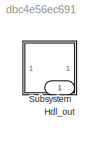
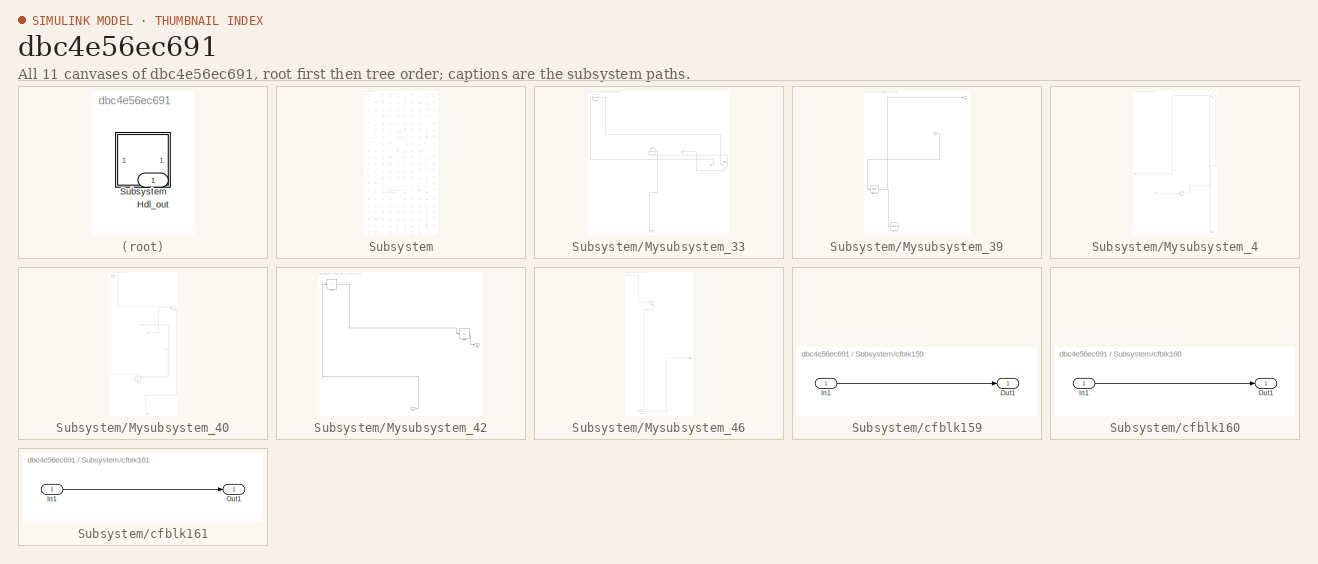
[diagram: thumbnail index - all 11 canvases of the model, root first then tree order]
MODEL slx_dbc4e56ec691
KIND model
CONFIG AbsTol = auto
CONFIG EnableMultiTasking = off
CONFIG FixedStep = auto
CONFIG MaxStep = auto
CONFIG MinStep = auto
CONFIG RelTol = 1e-3
CONFIG SampleTimeConstraint = Unconstrained
CONFIG SolverName = VariableStepAuto
CONFIG StartTime = 0.0
CONFIG StopTime = 10.0
BLOCK [Outport] Hdl_out
  OutDataTypeStr = uint8
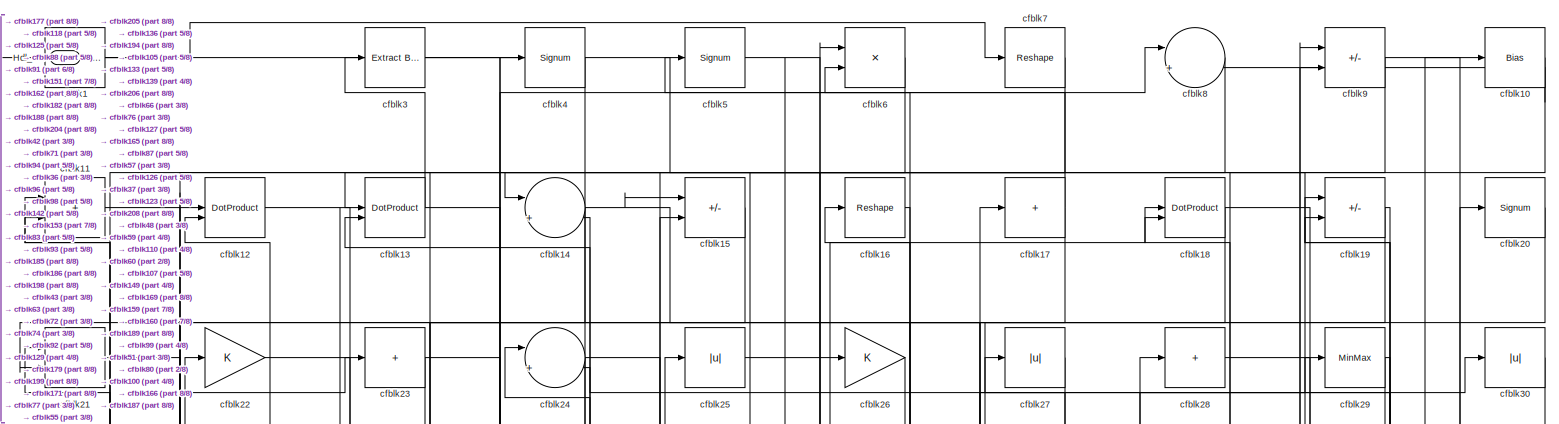
[diagram: Subsystem - part 1/8, full width, top band]
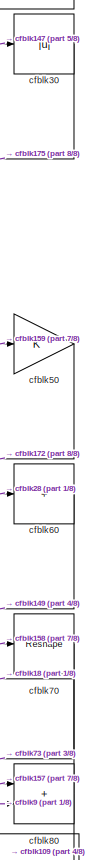
[diagram: Subsystem - part 2/8, top right region]
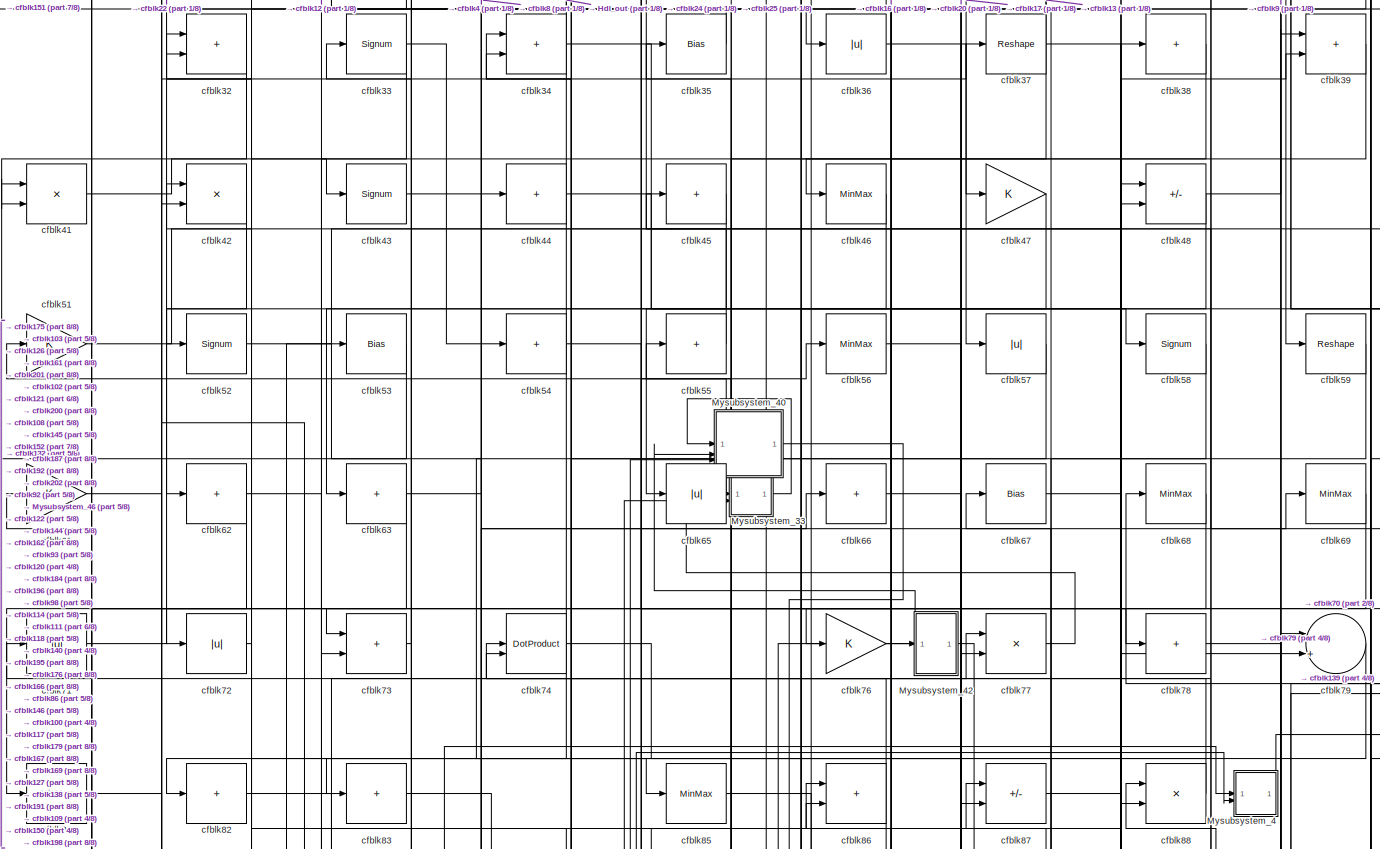
[diagram: Subsystem - part 3/8, full width, top band]
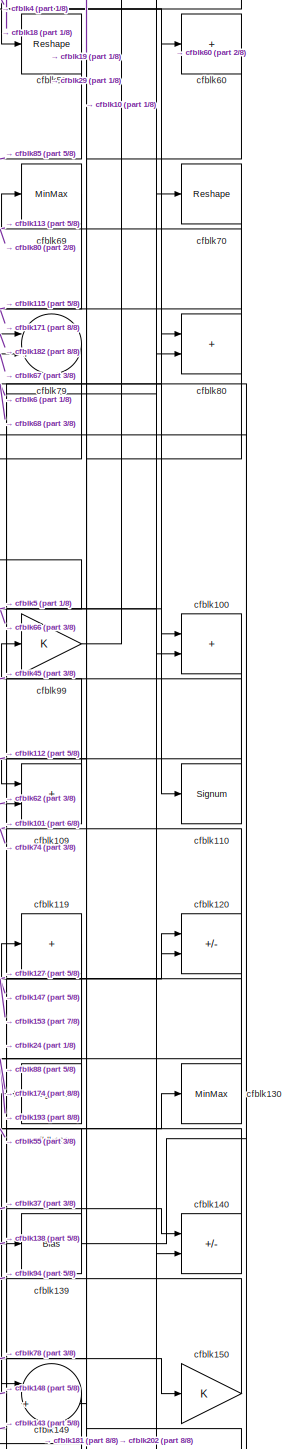
[diagram: Subsystem - part 4/8, middle right region]
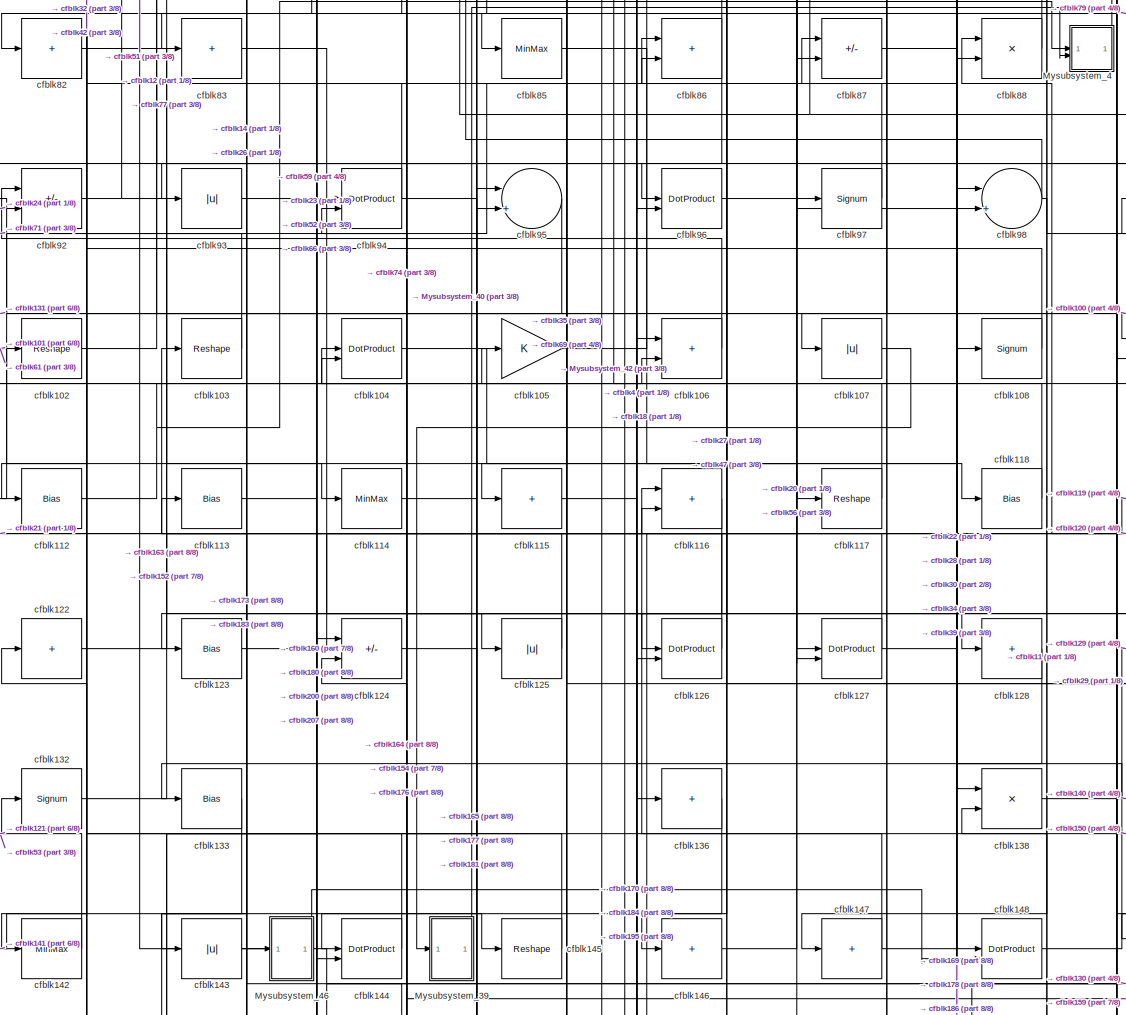
[diagram: Subsystem - part 5/8, central region]
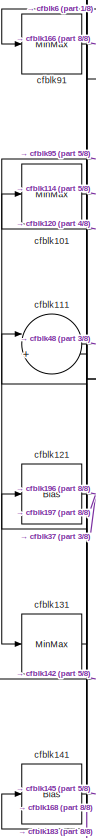
[diagram: Subsystem - part 6/8, middle left region]
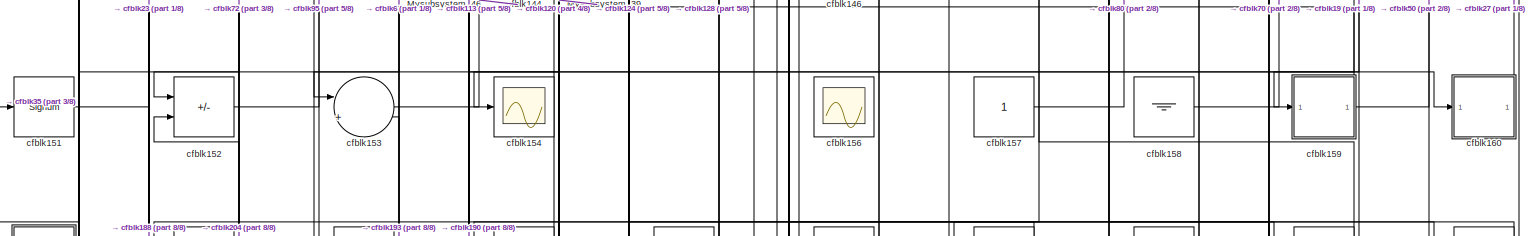
[diagram: Subsystem - part 7/8, full width, bottom band]
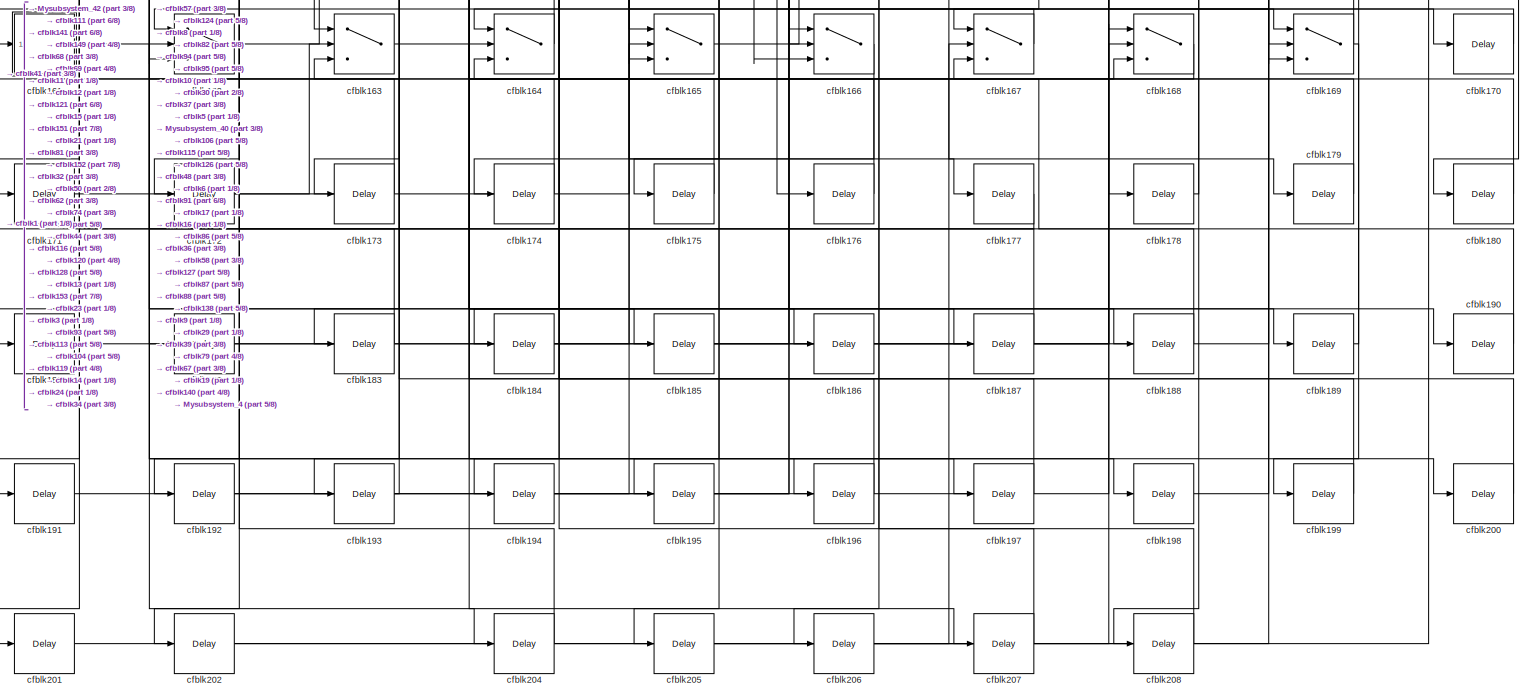
[diagram: Subsystem - part 8/8, full width, bottom band]
BLOCK [SubSystem] Subsystem
BLOCK [Outport] Subsystem/Hdl_out
  OutDataTypeStr = uint8
BLOCK [SubSystem] Subsystem/Mysubsystem_33
  RTWFcnName = Mysubsystem_33
  RTWFcnNameOpts = User specified
  RTWFileNameOpts = Use function name
  RTWSystemCode = Reusable function
  TreatAsAtomicUnit = on
BLOCK [Inport] Subsystem/Mysubsystem_33/In1
BLOCK [Inport] Subsystem/Mysubsystem_33/In2
  Port = 2
BLOCK [Outport] Subsystem/Mysubsystem_33/Out1
BLOCK [Reshape] Subsystem/Mysubsystem_33/cfblk31
BLOCK [Signum] Subsystem/Mysubsystem_33/cfblk75
BLOCK [Sum] Subsystem/Mysubsystem_33/cfblk90
  Inputs = |++
BLOCK [SubSystem] Subsystem/Mysubsystem_39
  RTWFcnName = Mysubsystem_39
  RTWFcnNameOpts = User specified
  RTWFileNameOpts = Use function name
  RTWSystemCode = Reusable function
  TreatAsAtomicUnit = on
BLOCK [Inport] Subsystem/Mysubsystem_39/In1
BLOCK [Outport] Subsystem/Mysubsystem_39/Out1
BLOCK [MinMax] Subsystem/Mysubsystem_39/cfblk134
BLOCK [ToWorkspace] Subsystem/Mysubsystem_39/cfblk155
  MaxDataPoints = inf
  SampleTime = -1
  SaveFormat = Timeseries
  VariableName = simout
BLOCK [SubSystem] Subsystem/Mysubsystem_4
  RTWFcnName = Mysubsystem_4
  RTWFcnNameOpts = User specified
  RTWFileNameOpts = Use function name
  RTWSystemCode = Reusable function
  TreatAsAtomicUnit = on
BLOCK [Inport] Subsystem/Mysubsystem_4/In1
BLOCK [Inport] Subsystem/Mysubsystem_4/In2
  Port = 2
BLOCK [Outport] Subsystem/Mysubsystem_4/Out1
BLOCK [Reshape] Subsystem/Mysubsystem_4/cfblk137
BLOCK [Sum] Subsystem/Mysubsystem_4/cfblk40
  Inputs = |++
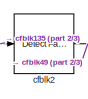
[diagram: Subsystem/Mysubsystem_40 - part 1/3, top left region]
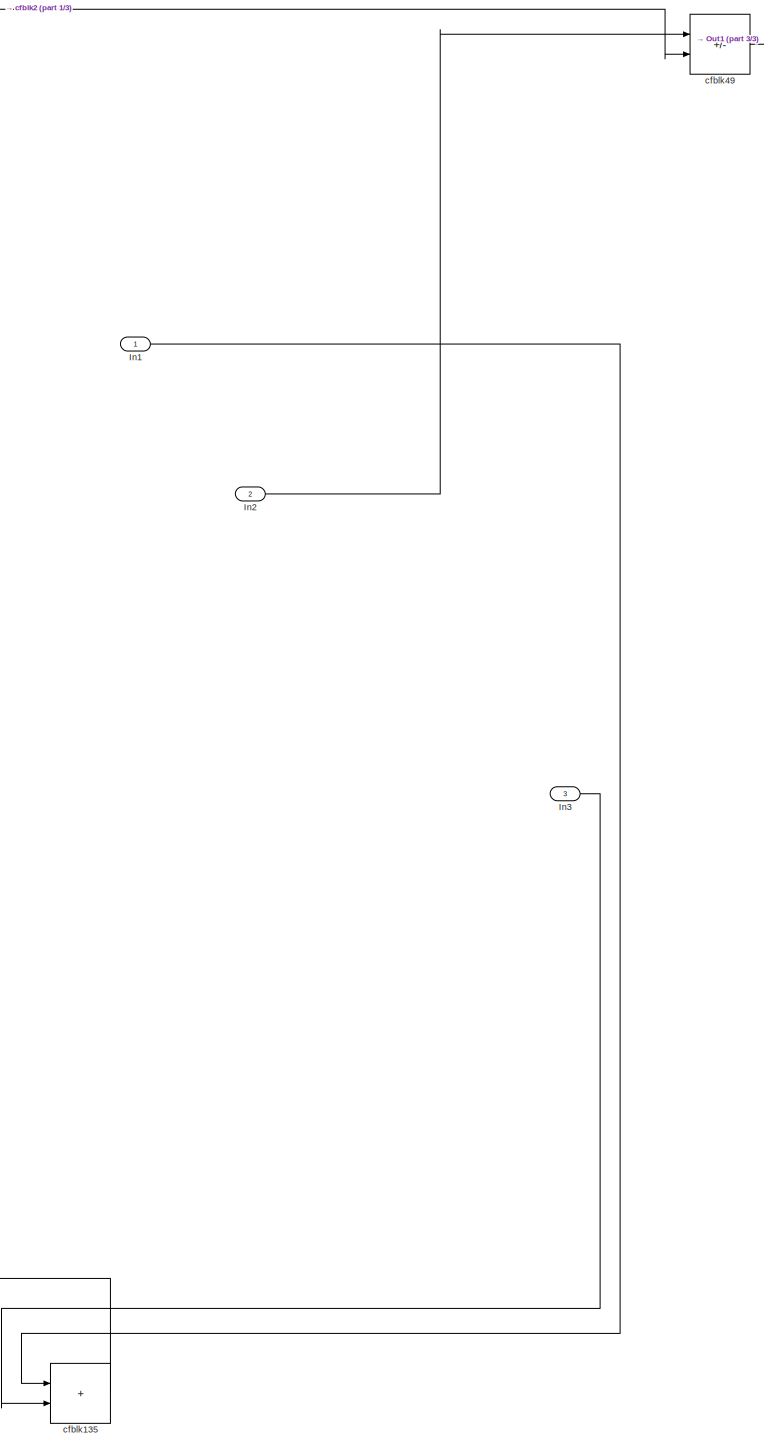
[diagram: Subsystem/Mysubsystem_40 - part 2/3, middle right region]
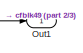
[diagram: Subsystem/Mysubsystem_40 - part 3/3, bottom center region]
BLOCK [SubSystem] Subsystem/Mysubsystem_40
  RTWFcnName = Mysubsystem_40
  RTWFcnNameOpts = User specified
  RTWFileNameOpts = Use function name
  RTWSystemCode = Reusable function
  TreatAsAtomicUnit = on
BLOCK [Inport] Subsystem/Mysubsystem_40/In1
BLOCK [Inport] Subsystem/Mysubsystem_40/In2
  Port = 2
BLOCK [Inport] Subsystem/Mysubsystem_40/In3
  Port = 3
BLOCK [Outport] Subsystem/Mysubsystem_40/Out1
BLOCK [Sum] Subsystem/Mysubsystem_40/cfblk135
  IconShape = rectangular
BLOCK [Reference] Subsystem/Mysubsystem_40/cfblk2  REF=hdlsllib/Logic and Bit
Operations/Detect Fall
Negative
  SourceBlock = hdlsllib/Logic and Bit\nOperations/Detect Fall\nNegative
  SourceType = Detect Fall Negative
BLOCK [Sum] Subsystem/Mysubsystem_40/cfblk49
  IconShape = rectangular
  Inputs = +-
BLOCK [SubSystem] Subsystem/Mysubsystem_42
  RTWFcnName = Mysubsystem_42
  RTWFcnNameOpts = User specified
  RTWFileNameOpts = Use function name
  RTWSystemCode = Reusable function
  TreatAsAtomicUnit = on
BLOCK [Inport] Subsystem/Mysubsystem_42/In1
BLOCK [Outport] Subsystem/Mysubsystem_42/Out1
BLOCK [Sum] Subsystem/Mysubsystem_42/cfblk64
  IconShape = rectangular
  Inputs = +
BLOCK [Abs] Subsystem/Mysubsystem_42/cfblk89
  SaturateOnIntegerOverflow = off
BLOCK [SubSystem] Subsystem/Mysubsystem_46
  RTWFcnName = Mysubsystem_46
  RTWFcnNameOpts = User specified
  RTWFileNameOpts = Use function name
  RTWSystemCode = Reusable function
  TreatAsAtomicUnit = on
BLOCK [Inport] Subsystem/Mysubsystem_46/In1
BLOCK [Outport] Subsystem/Mysubsystem_46/Out1
BLOCK [Delay] Subsystem/Mysubsystem_46/cfblk203
  InputPortMap = u0
  SampleTime = 1
BLOCK [MinMax] Subsystem/Mysubsystem_46/cfblk84
BLOCK [Reference] Subsystem/cfblk1  REF=hdlsllib/Logic and Bit
Operations/Detect Fall
Negative
  SourceBlock = hdlsllib/Logic and Bit\nOperations/Detect Fall\nNegative
  SourceType = Detect Fall Negative
BLOCK [Bias] Subsystem/cfblk10
  Bias = 0.0
  SaturateOnIntegerOverflow = off
BLOCK [Sum] Subsystem/cfblk100
  IconShape = rectangular
  OutDataTypeStr = uint8
BLOCK [MinMax] Subsystem/cfblk101
  OutDataTypeStr = uint8
BLOCK [Reshape] Subsystem/cfblk102
BLOCK [Reshape] Subsystem/cfblk103
BLOCK [DotProduct] Subsystem/cfblk104
  OutDataTypeStr = uint8
BLOCK [Gain] Subsystem/cfblk105
  OutDataTypeStr = uint8
BLOCK [Sum] Subsystem/cfblk106
  IconShape = rectangular
  OutDataTypeStr = uint8
BLOCK [Abs] Subsystem/cfblk107
  OutDataTypeStr = uint8
  SaturateOnIntegerOverflow = off
BLOCK [Signum] Subsystem/cfblk108
BLOCK [Sum] Subsystem/cfblk109
  IconShape = rectangular
  OutDataTypeStr = uint8
BLOCK [Sum] Subsystem/cfblk11
  IconShape = rectangular
  OutDataTypeStr = uint8
BLOCK [Signum] Subsystem/cfblk110
BLOCK [Sum] Subsystem/cfblk111
  Inputs = |++
  OutDataTypeStr = uint8
BLOCK [Bias] Subsystem/cfblk112
  Bias = 0.0
  SaturateOnIntegerOverflow = off
BLOCK [Bias] Subsystem/cfblk113
  Bias = 0.0
  SaturateOnIntegerOverflow = off
BLOCK [MinMax] Subsystem/cfblk114
  OutDataTypeStr = uint8
BLOCK [Sum] Subsystem/cfblk115
  IconShape = rectangular
  Inputs = +
  OutDataTypeStr = uint8
BLOCK [Sum] Subsystem/cfblk116
  IconShape = rectangular
  OutDataTypeStr = uint8
BLOCK [Reshape] Subsystem/cfblk117
BLOCK [Bias] Subsystem/cfblk118
  Bias = 0.0
  SaturateOnIntegerOverflow = off
BLOCK [Sum] Subsystem/cfblk119
  IconShape = rectangular
  Inputs = +
  OutDataTypeStr = uint8
BLOCK [DotProduct] Subsystem/cfblk12
  OutDataTypeStr = uint8
BLOCK [Sum] Subsystem/cfblk120
  IconShape = rectangular
  Inputs = +-
  OutDataTypeStr = uint8
BLOCK [Bias] Subsystem/cfblk121
  Bias = 0.0
  SaturateOnIntegerOverflow = off
BLOCK [Sum] Subsystem/cfblk122
  IconShape = rectangular
  Inputs = +
  OutDataTypeStr = uint8
BLOCK [Bias] Subsystem/cfblk123
  Bias = 0.0
  SaturateOnIntegerOverflow = off
BLOCK [Sum] Subsystem/cfblk124
  IconShape = rectangular
  Inputs = +-
  OutDataTypeStr = uint8
BLOCK [Abs] Subsystem/cfblk125
  OutDataTypeStr = uint8
  SaturateOnIntegerOverflow = off
BLOCK [DotProduct] Subsystem/cfblk126
  OutDataTypeStr = uint8
BLOCK [DotProduct] Subsystem/cfblk127
  OutDataTypeStr = uint8
BLOCK [Sum] Subsystem/cfblk128
  IconShape = rectangular
  Inputs = +
  OutDataTypeStr = uint8
BLOCK [Signum] Subsystem/cfblk129
BLOCK [DotProduct] Subsystem/cfblk13
  OutDataTypeStr = uint8
BLOCK [MinMax] Subsystem/cfblk130
  OutDataTypeStr = uint8
BLOCK [MinMax] Subsystem/cfblk131
  OutDataTypeStr = uint8
BLOCK [Signum] Subsystem/cfblk132
BLOCK [Bias] Subsystem/cfblk133
  Bias = 0.0
  SaturateOnIntegerOverflow = off
BLOCK [Sum] Subsystem/cfblk136
  IconShape = rectangular
  Inputs = +
  OutDataTypeStr = uint8
BLOCK [Product] Subsystem/cfblk138
  Inputs = */
  OutDataTypeStr = uint8
  RndMeth = Zero
  SaturateOnIntegerOverflow = on
BLOCK [Bias] Subsystem/cfblk139
  Bias = 0.0
  SaturateOnIntegerOverflow = off
BLOCK [Sum] Subsystem/cfblk14
  Inputs = |++
  OutDataTypeStr = uint8
BLOCK [Sum] Subsystem/cfblk140
  IconShape = rectangular
  Inputs = +-
  OutDataTypeStr = uint8
BLOCK [Bias] Subsystem/cfblk141
  Bias = 0.0
  SaturateOnIntegerOverflow = off
BLOCK [MinMax] Subsystem/cfblk142
  OutDataTypeStr = uint8
BLOCK [Abs] Subsystem/cfblk143
  OutDataTypeStr = uint8
  SaturateOnIntegerOverflow = off
BLOCK [DotProduct] Subsystem/cfblk144
  OutDataTypeStr = uint8
BLOCK [Reshape] Subsystem/cfblk145
BLOCK [Sum] Subsystem/cfblk146
  IconShape = rectangular
  Inputs = +
  OutDataTypeStr = uint8
BLOCK [Sum] Subsystem/cfblk147
  IconShape = rectangular
  Inputs = +
  OutDataTypeStr = uint8
BLOCK [DotProduct] Subsystem/cfblk148
  OutDataTypeStr = uint8
BLOCK [Sum] Subsystem/cfblk149
  Inputs = |++
  OutDataTypeStr = uint8
BLOCK [Sum] Subsystem/cfblk15
  IconShape = rectangular
  Inputs = +-
  OutDataTypeStr = uint8
BLOCK [Gain] Subsystem/cfblk150
  OutDataTypeStr = uint8
BLOCK [Signum] Subsystem/cfblk151
BLOCK [Sum] Subsystem/cfblk152
  IconShape = rectangular
  Inputs = +-
  OutDataTypeStr = uint8
BLOCK [Sum] Subsystem/cfblk153
  Inputs = |++
  OutDataTypeStr = uint8
BLOCK [Scope] Subsystem/cfblk154
  Floating = off
  NumInputPorts = 1
  ScopeSpecificationString = Simulink.scopes.TimeScopeBlockCfg('CurrentConfiguration', extmgr.ConfigurationSet(extmgr.Configuration('Core','General UI',true),extmgr.Configuration('Core','Source UI',true),extmgr.Configuration('Sources','WiredSimulink',true,'DataLoggingVariableName','ScopeData1','DataLoggingSaveFormat','Array','DataLoggingLimitDataPoints',true,'DataLoggingDecimation','1'),extmgr.Configuration('Visuals','Time Do...<+868ch>
BLOCK [Scope] Subsystem/cfblk156
  Floating = on
  NumInputPorts = 1
  ScopeSpecificationString = Simulink.scopes.TimeScopeBlockCfg('CurrentConfiguration', extmgr.ConfigurationSet(extmgr.Configuration('Core','General UI',true,'FigureColor',[0.156862745098039 0.156862745098039 0.156862745098039]),extmgr.Configuration('Core','Source UI',true),extmgr.Configuration('Sources','WiredSimulink',true,'DataLoggingSaveFormat','StructureWithTime','DataLoggingLimitDataPoints',true,'DataLoggingDecimation','...<+2674ch>
BLOCK [Constant] Subsystem/cfblk157
  OutDataTypeStr = uint8
  SampleTime = -1
BLOCK [Ground] Subsystem/cfblk158
BLOCK [SubSystem] Subsystem/cfblk159
  LibrarySourceBlock = hdlsllib/Ports &\nSubsystems/Subsystem
BLOCK [Inport] Subsystem/cfblk159/In1
BLOCK [Outport] Subsystem/cfblk159/Out1
BLOCK [Reshape] Subsystem/cfblk16
BLOCK [SubSystem] Subsystem/cfblk160
  LibrarySourceBlock = hdlsllib/Ports &\nSubsystems/Subsystem
BLOCK [Inport] Subsystem/cfblk160/In1
BLOCK [Outport] Subsystem/cfblk160/Out1
BLOCK [SubSystem] Subsystem/cfblk161
  LibrarySourceBlock = hdlsllib/Ports &\nSubsystems/Subsystem
BLOCK [Inport] Subsystem/cfblk161/In1
BLOCK [Outport] Subsystem/cfblk161/Out1
BLOCK [Switch] Subsystem/cfblk162
  InputSameDT = off
  OutDataTypeStr = uint8
  SaturateOnIntegerOverflow = off
BLOCK [Switch] Subsystem/cfblk163
  InputSameDT = off
  OutDataTypeStr = uint8
  SaturateOnIntegerOverflow = off
BLOCK [Switch] Subsystem/cfblk164
  InputSameDT = off
  OutDataTypeStr = uint8
  SaturateOnIntegerOverflow = off
BLOCK [Switch] Subsystem/cfblk165
  InputSameDT = off
  OutDataTypeStr = uint8
  SaturateOnIntegerOverflow = off
BLOCK [Switch] Subsystem/cfblk166
  InputSameDT = off
  OutDataTypeStr = uint8
  SaturateOnIntegerOverflow = off
BLOCK [Switch] Subsystem/cfblk167
  InputSameDT = off
  OutDataTypeStr = uint8
  SaturateOnIntegerOverflow = off
BLOCK [Switch] Subsystem/cfblk168
  InputSameDT = off
  OutDataTypeStr = uint8
  SaturateOnIntegerOverflow = off
BLOCK [Switch] Subsystem/cfblk169
  InputSameDT = off
  OutDataTypeStr = uint8
  SaturateOnIntegerOverflow = off
BLOCK [Sum] Subsystem/cfblk17
  IconShape = rectangular
  Inputs = +
  OutDataTypeStr = uint8
BLOCK [Delay] Subsystem/cfblk170
  InputPortMap = u0
  SampleTime = 1
BLOCK [Delay] Subsystem/cfblk171
  InputPortMap = u0
  SampleTime = 1
BLOCK [Delay] Subsystem/cfblk172
  InputPortMap = u0
  SampleTime = 1
BLOCK [Delay] Subsystem/cfblk173
  InputPortMap = u0
  SampleTime = 1
BLOCK [Delay] Subsystem/cfblk174
  InputPortMap = u0
  SampleTime = 1
BLOCK [Delay] Subsystem/cfblk175
  InputPortMap = u0
  SampleTime = 1
BLOCK [Delay] Subsystem/cfblk176
  InputPortMap = u0
  SampleTime = 1
BLOCK [Delay] Subsystem/cfblk177
  InputPortMap = u0
  SampleTime = 1
BLOCK [Delay] Subsystem/cfblk178
  InputPortMap = u0
  SampleTime = 1
BLOCK [Delay] Subsystem/cfblk179
  InputPortMap = u0
  SampleTime = 1
BLOCK [DotProduct] Subsystem/cfblk18
  OutDataTypeStr = uint8
BLOCK [Delay] Subsystem/cfblk180
  InputPortMap = u0
  SampleTime = 1
BLOCK [Delay] Subsystem/cfblk181
  InputPortMap = u0
  SampleTime = 1
BLOCK [Delay] Subsystem/cfblk182
  InputPortMap = u0
  SampleTime = 1
BLOCK [Delay] Subsystem/cfblk183
  InputPortMap = u0
  SampleTime = 1
BLOCK [Delay] Subsystem/cfblk184
  InputPortMap = u0
  SampleTime = 1
BLOCK [Delay] Subsystem/cfblk185
  InputPortMap = u0
  SampleTime = 1
BLOCK [Delay] Subsystem/cfblk186
  InputPortMap = u0
  SampleTime = 1
BLOCK [Delay] Subsystem/cfblk187
  InputPortMap = u0
  SampleTime = 1
BLOCK [Delay] Subsystem/cfblk188
  InputPortMap = u0
  SampleTime = 1
BLOCK [Delay] Subsystem/cfblk189
  InputPortMap = u0
  SampleTime = 1
BLOCK [Sum] Subsystem/cfblk19
  IconShape = rectangular
  Inputs = +-
  OutDataTypeStr = uint8
BLOCK [Delay] Subsystem/cfblk190
  InputPortMap = u0
  SampleTime = 1
BLOCK [Delay] Subsystem/cfblk191
  InputPortMap = u0
  SampleTime = 1
BLOCK [Delay] Subsystem/cfblk192
  InputPortMap = u0
  SampleTime = 1
BLOCK [Delay] Subsystem/cfblk193
  InputPortMap = u0
  SampleTime = 1
BLOCK [Delay] Subsystem/cfblk194
  InputPortMap = u0
  SampleTime = 1
BLOCK [Delay] Subsystem/cfblk195
  InputPortMap = u0
  SampleTime = 1
BLOCK [Delay] Subsystem/cfblk196
  InputPortMap = u0
  SampleTime = 1
BLOCK [Delay] Subsystem/cfblk197
  InputPortMap = u0
  SampleTime = 1
BLOCK [Delay] Subsystem/cfblk198
  InputPortMap = u0
  SampleTime = 1
BLOCK [Delay] Subsystem/cfblk199
  InputPortMap = u0
  SampleTime = 1
BLOCK [Signum] Subsystem/cfblk20
BLOCK [Delay] Subsystem/cfblk200
  InputPortMap = u0
  SampleTime = 1
BLOCK [Delay] Subsystem/cfblk201
  InputPortMap = u0
  SampleTime = 1
BLOCK [Delay] Subsystem/cfblk202
  InputPortMap = u0
  SampleTime = 1
BLOCK [Delay] Subsystem/cfblk204
  InputPortMap = u0
  SampleTime = 1
BLOCK [Delay] Subsystem/cfblk205
  InputPortMap = u0
  SampleTime = 1
BLOCK [Delay] Subsystem/cfblk206
  InputPortMap = u0
  SampleTime = 1
BLOCK [Delay] Subsystem/cfblk207
  InputPortMap = u0
  SampleTime = 1
BLOCK [Delay] Subsystem/cfblk208
  InputPortMap = u0
  SampleTime = 1
BLOCK [Sum] Subsystem/cfblk21
  IconShape = rectangular
  OutDataTypeStr = uint8
BLOCK [Gain] Subsystem/cfblk22
  OutDataTypeStr = uint8
BLOCK [Sum] Subsystem/cfblk23
  IconShape = rectangular
  Inputs = +
  OutDataTypeStr = uint8
BLOCK [Sum] Subsystem/cfblk24
  Inputs = |++
  OutDataTypeStr = uint8
BLOCK [Abs] Subsystem/cfblk25
  OutDataTypeStr = uint8
  SaturateOnIntegerOverflow = off
BLOCK [Gain] Subsystem/cfblk26
  OutDataTypeStr = uint8
BLOCK [Abs] Subsystem/cfblk27
  OutDataTypeStr = uint8
  SaturateOnIntegerOverflow = off
BLOCK [Sum] Subsystem/cfblk28
  IconShape = rectangular
  Inputs = +
  OutDataTypeStr = uint8
BLOCK [MinMax] Subsystem/cfblk29
  OutDataTypeStr = uint8
BLOCK [Reference] Subsystem/cfblk3  REF=simulink/Logic and Bit
Operations/Extract Bits
  LibrarySourceBlock = hdlsllib/Logic and Bit\nOperations/Extract Bits
  SourceBlock = simulink/Logic and Bit\nOperations/Extract Bits
  SourceType = Extract Bits
BLOCK [Abs] Subsystem/cfblk30
  OutDataTypeStr = uint8
  SaturateOnIntegerOverflow = off
BLOCK [Sum] Subsystem/cfblk32
  IconShape = rectangular
  OutDataTypeStr = uint8
BLOCK [Signum] Subsystem/cfblk33
BLOCK [Sum] Subsystem/cfblk34
  IconShape = rectangular
  OutDataTypeStr = uint8
BLOCK [Bias] Subsystem/cfblk35
  Bias = 0.0
  SaturateOnIntegerOverflow = off
BLOCK [Abs] Subsystem/cfblk36
  OutDataTypeStr = uint8
  SaturateOnIntegerOverflow = off
BLOCK [Reshape] Subsystem/cfblk37
BLOCK [Sum] Subsystem/cfblk38
  IconShape = rectangular
  Inputs = +
  OutDataTypeStr = uint8
BLOCK [Sum] Subsystem/cfblk39
  IconShape = rectangular
  OutDataTypeStr = uint8
BLOCK [Signum] Subsystem/cfblk4
BLOCK [Product] Subsystem/cfblk41
  Inputs = */
  OutDataTypeStr = uint8
  RndMeth = Zero
  SaturateOnIntegerOverflow = on
BLOCK [Product] Subsystem/cfblk42
  Inputs = */
  OutDataTypeStr = uint8
  RndMeth = Zero
  SaturateOnIntegerOverflow = on
BLOCK [Signum] Subsystem/cfblk43
BLOCK [Sum] Subsystem/cfblk44
  IconShape = rectangular
  Inputs = +
  OutDataTypeStr = uint8
BLOCK [Sum] Subsystem/cfblk45
  IconShape = rectangular
  Inputs = +
  OutDataTypeStr = uint8
BLOCK [MinMax] Subsystem/cfblk46
  OutDataTypeStr = uint8
BLOCK [Gain] Subsystem/cfblk47
  OutDataTypeStr = uint8
BLOCK [Sum] Subsystem/cfblk48
  IconShape = rectangular
  Inputs = +-
  OutDataTypeStr = uint8
BLOCK [Signum] Subsystem/cfblk5
BLOCK [Gain] Subsystem/cfblk50
  OutDataTypeStr = uint8
BLOCK [Gain] Subsystem/cfblk51
  OutDataTypeStr = uint8
BLOCK [Signum] Subsystem/cfblk52
BLOCK [Bias] Subsystem/cfblk53
  Bias = 0.0
  SaturateOnIntegerOverflow = off
BLOCK [Sum] Subsystem/cfblk54
  IconShape = rectangular
  Inputs = +
  OutDataTypeStr = uint8
BLOCK [Sum] Subsystem/cfblk55
  IconShape = rectangular
  Inputs = +
  OutDataTypeStr = uint8
BLOCK [MinMax] Subsystem/cfblk56
  OutDataTypeStr = uint8
BLOCK [Abs] Subsystem/cfblk57
  OutDataTypeStr = uint8
  SaturateOnIntegerOverflow = off
BLOCK [Signum] Subsystem/cfblk58
BLOCK [Reshape] Subsystem/cfblk59
BLOCK [Product] Subsystem/cfblk6
  Inputs = */
  OutDataTypeStr = uint8
  RndMeth = Zero
  SaturateOnIntegerOverflow = on
BLOCK [Sum] Subsystem/cfblk60
  IconShape = rectangular
  Inputs = +
  OutDataTypeStr = uint8
BLOCK [Gain] Subsystem/cfblk61
  OutDataTypeStr = uint8
BLOCK [Sum] Subsystem/cfblk62
  IconShape = rectangular
  Inputs = +
  OutDataTypeStr = uint8
BLOCK [Sum] Subsystem/cfblk63
  IconShape = rectangular
  Inputs = +
  OutDataTypeStr = uint8
BLOCK [Abs] Subsystem/cfblk65
  OutDataTypeStr = uint8
  SaturateOnIntegerOverflow = off
BLOCK [Sum] Subsystem/cfblk66
  IconShape = rectangular
  Inputs = +
  OutDataTypeStr = uint8
BLOCK [Bias] Subsystem/cfblk67
  Bias = 0.0
  SaturateOnIntegerOverflow = off
BLOCK [MinMax] Subsystem/cfblk68
  OutDataTypeStr = uint8
BLOCK [MinMax] Subsystem/cfblk69
  OutDataTypeStr = uint8
BLOCK [Reshape] Subsystem/cfblk7
BLOCK [Reshape] Subsystem/cfblk70
BLOCK [Abs] Subsystem/cfblk71
  OutDataTypeStr = uint8
  SaturateOnIntegerOverflow = off
BLOCK [Abs] Subsystem/cfblk72
  OutDataTypeStr = uint8
  SaturateOnIntegerOverflow = off
BLOCK [Sum] Subsystem/cfblk73
  IconShape = rectangular
  OutDataTypeStr = uint8
BLOCK [DotProduct] Subsystem/cfblk74
  OutDataTypeStr = uint8
BLOCK [Gain] Subsystem/cfblk76
  OutDataTypeStr = uint8
BLOCK [Product] Subsystem/cfblk77
  Inputs = */
  OutDataTypeStr = uint8
  RndMeth = Zero
  SaturateOnIntegerOverflow = on
BLOCK [Sum] Subsystem/cfblk78
  IconShape = rectangular
  Inputs = +
  OutDataTypeStr = uint8
BLOCK [Sum] Subsystem/cfblk79
  Inputs = |++
  OutDataTypeStr = uint8
BLOCK [Sum] Subsystem/cfblk8
  Inputs = |++
  OutDataTypeStr = uint8
BLOCK [Sum] Subsystem/cfblk80
  IconShape = rectangular
  OutDataTypeStr = uint8
BLOCK [MinMax] Subsystem/cfblk81
  OutDataTypeStr = uint8
BLOCK [Sum] Subsystem/cfblk82
  IconShape = rectangular
  Inputs = +
  OutDataTypeStr = uint8
BLOCK [Sum] Subsystem/cfblk83
  IconShape = rectangular
  Inputs = +
  OutDataTypeStr = uint8
BLOCK [MinMax] Subsystem/cfblk85
  OutDataTypeStr = uint8
BLOCK [Sum] Subsystem/cfblk86
  IconShape = rectangular
  OutDataTypeStr = uint8
BLOCK [Sum] Subsystem/cfblk87
  IconShape = rectangular
  Inputs = +-
  OutDataTypeStr = uint8
BLOCK [Product] Subsystem/cfblk88
  Inputs = */
  OutDataTypeStr = uint8
  RndMeth = Zero
  SaturateOnIntegerOverflow = on
BLOCK [Sum] Subsystem/cfblk9
  IconShape = rectangular
  Inputs = +-
  OutDataTypeStr = uint8
BLOCK [MinMax] Subsystem/cfblk91
  OutDataTypeStr = uint8
BLOCK [Sum] Subsystem/cfblk92
  IconShape = rectangular
  Inputs = +-
  OutDataTypeStr = uint8
BLOCK [Abs] Subsystem/cfblk93
  OutDataTypeStr = uint8
  SaturateOnIntegerOverflow = off
BLOCK [DotProduct] Subsystem/cfblk94
  OutDataTypeStr = uint8
BLOCK [Sum] Subsystem/cfblk95
  Inputs = |++
  OutDataTypeStr = uint8
BLOCK [DotProduct] Subsystem/cfblk96
  OutDataTypeStr = uint8
BLOCK [Signum] Subsystem/cfblk97
BLOCK [Sum] Subsystem/cfblk98
  Inputs = |++
  OutDataTypeStr = uint8
BLOCK [Gain] Subsystem/cfblk99
  OutDataTypeStr = uint8
LINE Subsystem/Mysubsystem_33/In1:1 -> Subsystem/Mysubsystem_33/cfblk90:2
LINE Subsystem/Mysubsystem_33/In2:1 -> Subsystem/Mysubsystem_33/cfblk31:1
LINE Subsystem/Mysubsystem_33/cfblk31:1 -> Subsystem/Mysubsystem_33/cfblk90:1
LINE Subsystem/Mysubsystem_33/cfblk75:1 -> Subsystem/Mysubsystem_33/Out1:1
LINE Subsystem/Mysubsystem_33/cfblk90:1 -> Subsystem/Mysubsystem_33/cfblk75:1
LINE Subsystem/Mysubsystem_33:1 -> Subsystem/Mysubsystem_40:1
LINE Subsystem/Mysubsystem_39/In1:1 -> Subsystem/Mysubsystem_39/cfblk134:1
NET Subsystem/Mysubsystem_39/cfblk134:1 -> Subsystem/Mysubsystem_39/Out1:1, Subsystem/Mysubsystem_39/cfblk155:1
LINE Subsystem/Mysubsystem_39:1 -> Subsystem/Mysubsystem_4:2
LINE Subsystem/Mysubsystem_4/In1:1 -> Subsystem/Mysubsystem_4/cfblk40:1
LINE Subsystem/Mysubsystem_4/In2:1 -> Subsystem/Mysubsystem_4/cfblk137:1
LINE Subsystem/Mysubsystem_4/cfblk137:1 -> Subsystem/Mysubsystem_4/cfblk40:2
LINE Subsystem/Mysubsystem_4/cfblk40:1 -> Subsystem/Mysubsystem_4/Out1:1
LINE Subsystem/Mysubsystem_40/In1:1 -> Subsystem/Mysubsystem_40/cfblk135:1
LINE Subsystem/Mysubsystem_40/In2:1 -> Subsystem/Mysubsystem_40/cfblk49:1
LINE Subsystem/Mysubsystem_40/In3:1 -> Subsystem/Mysubsystem_40/cfblk135:2
LINE Subsystem/Mysubsystem_40/cfblk135:1 -> Subsystem/Mysubsystem_40/cfblk2:1
LINE Subsystem/Mysubsystem_40/cfblk2:1 -> Subsystem/Mysubsystem_40/cfblk49:2
LINE Subsystem/Mysubsystem_40/cfblk49:1 -> Subsystem/Mysubsystem_40/Out1:1
LINE Subsystem/Mysubsystem_40:1 -> Subsystem/cfblk176:1
LINE Subsystem/Mysubsystem_42/In1:1 -> Subsystem/Mysubsystem_42/cfblk64:1
LINE Subsystem/Mysubsystem_42/cfblk64:1 -> Subsystem/Mysubsystem_42/cfblk89:1
LINE Subsystem/Mysubsystem_42/cfblk89:1 -> Subsystem/Mysubsystem_42/Out1:1
NET Subsystem/Mysubsystem_42:1 -> Subsystem/Mysubsystem_33:2, Subsystem/cfblk191:1
LINE Subsystem/Mysubsystem_46/In1:1 -> Subsystem/Mysubsystem_46/cfblk84:1
LINE Subsystem/Mysubsystem_46/cfblk203:1 -> Subsystem/Mysubsystem_46/Out1:1
LINE Subsystem/Mysubsystem_46/cfblk84:1 -> Subsystem/Mysubsystem_46/cfblk203:1
LINE Subsystem/Mysubsystem_46:1 -> Subsystem/cfblk148:2
LINE Subsystem/Mysubsystem_4:1 -> Subsystem/cfblk180:1
LINE Subsystem/cfblk100:1 -> Subsystem/cfblk112:1
LINE Subsystem/cfblk101:1 -> Subsystem/cfblk114:1
LINE Subsystem/cfblk102:1 -> Subsystem/cfblk86:1
LINE Subsystem/cfblk103:1 -> Subsystem/cfblk71:1
LINE Subsystem/cfblk104:1 -> Subsystem/cfblk127:1
LINE Subsystem/cfblk105:1 -> Subsystem/cfblk18:1
LINE Subsystem/cfblk106:1 -> Subsystem/cfblk92:1
LINE Subsystem/cfblk107:1 -> Subsystem/Mysubsystem_39:1
LINE Subsystem/cfblk108:1 -> Subsystem/cfblk42:1
NET Subsystem/cfblk109:1 -> Subsystem/cfblk45:1, Subsystem/cfblk74:2
NET Subsystem/cfblk10:1 -> Subsystem/cfblk205:1, Subsystem/cfblk8:2
LINE Subsystem/cfblk110:1 -> Subsystem/cfblk99:1
LINE Subsystem/cfblk111:1 -> Subsystem/cfblk48:1
NET Subsystem/cfblk112:1 -> Subsystem/Mysubsystem_4:1, Subsystem/cfblk106:2
NET Subsystem/cfblk113:1 -> Subsystem/cfblk160:1, Subsystem/cfblk69:1
LINE Subsystem/cfblk114:1 -> Subsystem/cfblk56:1
LINE Subsystem/cfblk115:1 -> Subsystem/cfblk170:1
LINE Subsystem/cfblk116:1 -> Subsystem/cfblk173:1
LINE Subsystem/cfblk117:1 -> Subsystem/Mysubsystem_42:1
NET Subsystem/cfblk118:1 -> Subsystem/cfblk11:2, Subsystem/cfblk35:1
LINE Subsystem/cfblk119:1 -> Subsystem/cfblk174:1
LINE Subsystem/cfblk11:1 -> Subsystem/cfblk182:1
NET Subsystem/cfblk120:1 -> Subsystem/cfblk101:1, Subsystem/cfblk193:1, Subsystem/cfblk74:1
NET Subsystem/cfblk121:1 -> Subsystem/cfblk196:1, Subsystem/cfblk197:1, Subsystem/cfblk37:1
NET Subsystem/cfblk122:1 -> Subsystem/cfblk108:1, Subsystem/cfblk77:1
LINE Subsystem/cfblk123:1 -> Subsystem/cfblk28:1
NET Subsystem/cfblk124:1 -> Subsystem/cfblk104:1, Subsystem/cfblk169:2
LINE Subsystem/cfblk125:1 -> Subsystem/cfblk21:1
NET Subsystem/cfblk126:1 -> Subsystem/cfblk105:1, Subsystem/cfblk61:1
NET Subsystem/cfblk127:1 -> Subsystem/cfblk103:1, Subsystem/cfblk120:2, Subsystem/cfblk169:1, Subsystem/cfblk39:2
NET Subsystem/cfblk128:1 -> Subsystem/cfblk154:1, Subsystem/cfblk183:1
LINE Subsystem/cfblk129:1 -> Subsystem/cfblk24:1
NET Subsystem/cfblk12:1 -> Subsystem/cfblk36:1, Subsystem/cfblk96:1
LINE Subsystem/cfblk130:1 -> Subsystem/cfblk88:1
LINE Subsystem/cfblk131:1 -> Subsystem/cfblk111:1
LINE Subsystem/cfblk132:1 -> Subsystem/cfblk116:1
LINE Subsystem/cfblk133:1 -> Subsystem/cfblk163:1
LINE Subsystem/cfblk136:1 -> Subsystem/cfblk144:1
LINE Subsystem/cfblk138:1 -> Subsystem/cfblk140:1
NET Subsystem/cfblk139:1 -> Subsystem/cfblk68:1, Subsystem/cfblk6:2
NET Subsystem/cfblk13:1 -> Subsystem/cfblk186:1, Subsystem/cfblk3:1
LINE Subsystem/cfblk140:1 -> Subsystem/cfblk55:1
LINE Subsystem/cfblk141:1 -> Subsystem/cfblk145:1
LINE Subsystem/cfblk142:1 -> Subsystem/cfblk121:1
LINE Subsystem/cfblk143:1 -> Subsystem/cfblk130:1
LINE Subsystem/cfblk144:1 -> Subsystem/cfblk122:1
LINE Subsystem/cfblk145:1 -> Subsystem/cfblk32:1
LINE Subsystem/cfblk146:1 -> Subsystem/cfblk97:1
NET Subsystem/cfblk147:1 -> Subsystem/cfblk116:2, Subsystem/cfblk119:1, Subsystem/cfblk30:1
LINE Subsystem/cfblk148:1 -> Subsystem/cfblk129:1
LINE Subsystem/cfblk149:1 -> Subsystem/cfblk181:1
NET Subsystem/cfblk14:1 -> Subsystem/cfblk127:2, Subsystem/cfblk15:1, Subsystem/cfblk83:1
LINE Subsystem/cfblk150:1 -> Subsystem/cfblk94:2
NET Subsystem/cfblk151:1 -> Subsystem/cfblk188:1, Subsystem/cfblk23:1
LINE Subsystem/cfblk152:1 -> Subsystem/cfblk95:2
NET Subsystem/cfblk153:1 -> Subsystem/cfblk120:1, Subsystem/cfblk190:1
LINE Subsystem/cfblk157:1 -> Subsystem/cfblk80:1
LINE Subsystem/cfblk158:1 -> Subsystem/cfblk70:1
LINE Subsystem/cfblk159/In1:1 -> Subsystem/cfblk159/Out1:1
NET Subsystem/cfblk159:1 -> Subsystem/cfblk124:2, Subsystem/cfblk50:1
LINE Subsystem/cfblk15:1 -> Subsystem/cfblk162:3
LINE Subsystem/cfblk160/In1:1 -> Subsystem/cfblk160/Out1:1
LINE Subsystem/cfblk160:1 -> Subsystem/cfblk27:1
LINE Subsystem/cfblk161/In1:1 -> Subsystem/cfblk161/Out1:1
LINE Subsystem/cfblk161:1 -> Subsystem/cfblk189:1
LINE Subsystem/cfblk162:1 -> Subsystem/cfblk44:1
LINE Subsystem/cfblk163:1 -> Subsystem/cfblk168:3
LINE Subsystem/cfblk164:1 -> Subsystem/cfblk113:1
LINE Subsystem/cfblk165:1 -> Subsystem/cfblk17:1
LINE Subsystem/cfblk166:1 -> Subsystem/cfblk194:1
LINE Subsystem/cfblk167:1 -> Subsystem/cfblk164:1
LINE Subsystem/cfblk168:1 -> Subsystem/cfblk141:1
NET Subsystem/cfblk169:1 -> Subsystem/cfblk199:1, Subsystem/cfblk67:1
LINE Subsystem/cfblk16:1 -> Subsystem/cfblk206:1
LINE Subsystem/cfblk170:1 -> Subsystem/cfblk162:1
LINE Subsystem/cfblk171:1 -> Subsystem/cfblk15:2
LINE Subsystem/cfblk172:1 -> Subsystem/cfblk163:2
LINE Subsystem/cfblk173:1 -> Subsystem/cfblk162:2
LINE Subsystem/cfblk174:1 -> Subsystem/cfblk164:2
LINE Subsystem/cfblk175:1 -> Subsystem/cfblk41:1
LINE Subsystem/cfblk176:1 -> Subsystem/cfblk104:2
LINE Subsystem/cfblk177:1 -> Subsystem/cfblk1:1
LINE Subsystem/cfblk178:1 -> Subsystem/cfblk138:2
LINE Subsystem/cfblk179:1 -> Subsystem/cfblk24:2
NET Subsystem/cfblk17:1 -> Subsystem/cfblk13:1, Subsystem/cfblk57:1, Subsystem/cfblk5:1
LINE Subsystem/cfblk180:1 -> Subsystem/cfblk94:1
LINE Subsystem/cfblk181:1 -> Subsystem/cfblk95:1
LINE Subsystem/cfblk182:1 -> Subsystem/cfblk79:1
LINE Subsystem/cfblk183:1 -> Subsystem/cfblk111:2
LINE Subsystem/cfblk184:1 -> Subsystem/cfblk126:2
LINE Subsystem/cfblk185:1 -> Subsystem/cfblk168:2
LINE Subsystem/cfblk186:1 -> Subsystem/cfblk88:2
LINE Subsystem/cfblk187:1 -> Subsystem/cfblk32:2
LINE Subsystem/cfblk188:1 -> Subsystem/cfblk12:1
LINE Subsystem/cfblk189:1 -> Subsystem/cfblk19:2
NET Subsystem/cfblk18:1 -> Subsystem/cfblk110:1, Subsystem/cfblk93:1
LINE Subsystem/cfblk190:1 -> Subsystem/cfblk167:3
LINE Subsystem/cfblk191:1 -> Subsystem/cfblk48:2
LINE Subsystem/cfblk192:1 -> Subsystem/cfblk165:2
LINE Subsystem/cfblk193:1 -> Subsystem/cfblk153:2
LINE Subsystem/cfblk194:1 -> Subsystem/cfblk6:1
LINE Subsystem/cfblk195:1 -> Subsystem/cfblk106:1
LINE Subsystem/cfblk196:1 -> Subsystem/cfblk34:2
LINE Subsystem/cfblk197:1 -> Subsystem/cfblk163:3
LINE Subsystem/cfblk198:1 -> Subsystem/cfblk39:1
LINE Subsystem/cfblk199:1 -> Subsystem/cfblk14:2
NET Subsystem/cfblk19:1 -> Subsystem/cfblk159:1, Subsystem/cfblk21:2
LINE Subsystem/cfblk1:1 -> Subsystem/cfblk7:1
LINE Subsystem/cfblk200:1 -> Subsystem/cfblk124:1
LINE Subsystem/cfblk201:1 -> Subsystem/cfblk168:1
LINE Subsystem/cfblk202:1 -> Subsystem/cfblk140:2
LINE Subsystem/cfblk204:1 -> Subsystem/cfblk152:2
LINE Subsystem/cfblk205:1 -> Subsystem/cfblk167:2
LINE Subsystem/cfblk206:1 -> Subsystem/cfblk9:2
LINE Subsystem/cfblk207:1 -> Subsystem/cfblk86:2
LINE Subsystem/cfblk208:1 -> Subsystem/cfblk164:3
NET Subsystem/cfblk20:1 -> Subsystem/cfblk76:1, Subsystem/cfblk87:2
NET Subsystem/cfblk21:1 -> Subsystem/cfblk204:1, Subsystem/cfblk96:2
LINE Subsystem/cfblk22:1 -> Subsystem/cfblk98:1
NET Subsystem/cfblk23:1 -> Subsystem/cfblk142:1, Subsystem/cfblk198:1
NET Subsystem/cfblk24:1 -> Subsystem/cfblk72:1, Subsystem/cfblk77:2, Subsystem/cfblk92:2
LINE Subsystem/cfblk25:1 -> Subsystem/cfblk26:1
LINE Subsystem/cfblk26:1 -> Subsystem/cfblk133:1
LINE Subsystem/cfblk27:1 -> Subsystem/cfblk126:1
LINE Subsystem/cfblk28:1 -> Subsystem/cfblk60:1
NET Subsystem/cfblk29:1 -> Subsystem/cfblk107:1, Subsystem/cfblk149:2, Subsystem/cfblk169:3
LINE Subsystem/cfblk30:1 -> Subsystem/cfblk175:1
LINE Subsystem/cfblk32:1 -> Subsystem/cfblk41:2
NET Subsystem/cfblk33:1 -> Subsystem/cfblk52:1, Subsystem/cfblk54:1
LINE Subsystem/cfblk34:1 -> Subsystem/cfblk138:1
LINE Subsystem/cfblk35:1 -> Subsystem/cfblk151:1
NET Subsystem/cfblk36:1 -> Subsystem/cfblk179:1, Subsystem/cfblk47:1
NET Subsystem/cfblk37:1 -> Subsystem/cfblk139:1, Subsystem/cfblk13:2, Subsystem/cfblk195:1
LINE Subsystem/cfblk38:1 -> Subsystem/cfblk46:1
LINE Subsystem/cfblk39:1 -> Subsystem/cfblk73:2
LINE Subsystem/cfblk3:1 -> Subsystem/cfblk185:1
LINE Subsystem/cfblk41:1 -> Subsystem/cfblk43:1
LINE Subsystem/cfblk42:1 -> Subsystem/cfblk62:1
LINE Subsystem/cfblk43:1 -> Subsystem/cfblk4:1
LINE Subsystem/cfblk44:1 -> Subsystem/cfblk58:1
LINE Subsystem/cfblk45:1 -> Subsystem/cfblk65:1
LINE Subsystem/cfblk46:1 -> Subsystem/cfblk63:1
LINE Subsystem/cfblk47:1 -> Subsystem/cfblk146:1
NET Subsystem/cfblk48:1 -> Subsystem/cfblk166:2, Subsystem/cfblk9:1
NET Subsystem/cfblk4:1 -> Subsystem/cfblk136:1, Subsystem/cfblk59:1
LINE Subsystem/cfblk50:1 -> Subsystem/cfblk172:1
NET Subsystem/cfblk51:1 -> Subsystem/Mysubsystem_46:1, Subsystem/cfblk20:1
NET Subsystem/cfblk52:1 -> Subsystem/cfblk144:2, Subsystem/cfblk38:1
LINE Subsystem/cfblk53:1 -> Subsystem/cfblk132:1
LINE Subsystem/cfblk54:1 -> Subsystem/cfblk78:1
LINE Subsystem/cfblk55:1 -> Subsystem/cfblk25:1
LINE Subsystem/cfblk56:1 -> Subsystem/cfblk98:2
LINE Subsystem/cfblk57:1 -> Subsystem/cfblk184:1
LINE Subsystem/cfblk58:1 -> Subsystem/cfblk167:1
LINE Subsystem/cfblk59:1 -> Subsystem/cfblk85:1
NET Subsystem/cfblk5:1 -> Subsystem/cfblk100:2, Subsystem/cfblk166:3, Subsystem/cfblk187:1
LINE Subsystem/cfblk60:1 -> Subsystem/cfblk149:1
LINE Subsystem/cfblk61:1 -> Subsystem/cfblk102:1
NET Subsystem/cfblk62:1 -> Subsystem/cfblk109:2, Subsystem/cfblk201:1, Subsystem/cfblk202:1
NET Subsystem/cfblk63:1 -> Subsystem/cfblk81:1, Subsystem/cfblk8:1
LINE Subsystem/cfblk65:1 -> Subsystem/cfblk51:1
NET Subsystem/cfblk66:1 -> Subsystem/cfblk100:1, Subsystem/cfblk16:1
LINE Subsystem/cfblk67:1 -> Subsystem/cfblk79:2
LINE Subsystem/cfblk68:1 -> Subsystem/cfblk161:1
NET Subsystem/cfblk69:1 -> Subsystem/cfblk115:1, Subsystem/cfblk171:1
NET Subsystem/cfblk6:1 -> Subsystem/cfblk153:1, Subsystem/cfblk91:1
LINE Subsystem/cfblk70:1 -> Subsystem/cfblk73:1
LINE Subsystem/cfblk71:1 -> Subsystem/cfblk22:1
LINE Subsystem/cfblk72:1 -> Subsystem/cfblk152:1
LINE Subsystem/cfblk73:1 -> Subsystem/cfblk33:1
NET Subsystem/cfblk74:1 -> Subsystem/Hdl_out:1, Subsystem/cfblk117:1, Subsystem/cfblk192:1
LINE Subsystem/cfblk76:1 -> Subsystem/Mysubsystem_40:2
LINE Subsystem/cfblk77:1 -> Subsystem/Mysubsystem_33:1
LINE Subsystem/cfblk78:1 -> Subsystem/cfblk150:1
LINE Subsystem/cfblk79:1 -> Subsystem/cfblk143:1
LINE Subsystem/cfblk7:1 -> Subsystem/cfblk14:1
NET Subsystem/cfblk80:1 -> Subsystem/cfblk109:1, Subsystem/cfblk18:2
LINE Subsystem/cfblk81:1 -> Subsystem/cfblk200:1
NET Subsystem/cfblk82:1 -> Subsystem/cfblk128:1, Subsystem/cfblk165:1
LINE Subsystem/cfblk83:1 -> Subsystem/cfblk125:1
LINE Subsystem/cfblk85:1 -> Subsystem/cfblk148:1
NET Subsystem/cfblk86:1 -> Subsystem/cfblk123:1, Subsystem/cfblk34:1
LINE Subsystem/cfblk87:1 -> Subsystem/cfblk178:1
NET Subsystem/cfblk88:1 -> Subsystem/cfblk11:1, Subsystem/cfblk82:1
NET Subsystem/cfblk8:1 -> Subsystem/cfblk165:3, Subsystem/cfblk42:2
LINE Subsystem/cfblk91:1 -> Subsystem/cfblk166:1
NET Subsystem/cfblk92:1 -> Subsystem/cfblk118:1, Subsystem/cfblk53:1
NET Subsystem/cfblk93:1 -> Subsystem/cfblk207:1, Subsystem/cfblk66:1
NET Subsystem/cfblk94:1 -> Subsystem/cfblk12:2, Subsystem/cfblk177:1
LINE Subsystem/cfblk95:1 -> Subsystem/cfblk131:1
LINE Subsystem/cfblk96:1 -> Subsystem/cfblk29:1
LINE Subsystem/cfblk97:1 -> Subsystem/cfblk87:1
NET Subsystem/cfblk98:1 -> Subsystem/Mysubsystem_40:3, Subsystem/cfblk147:1
NET Subsystem/cfblk99:1 -> Subsystem/cfblk10:1, Subsystem/cfblk19:1
NET Subsystem/cfblk9:1 -> Subsystem/cfblk208:1, Subsystem/cfblk80:2
note: NET lines group one-source signal fan-out (src -> all destinations, sorted); 1:1 wires keep LINE
